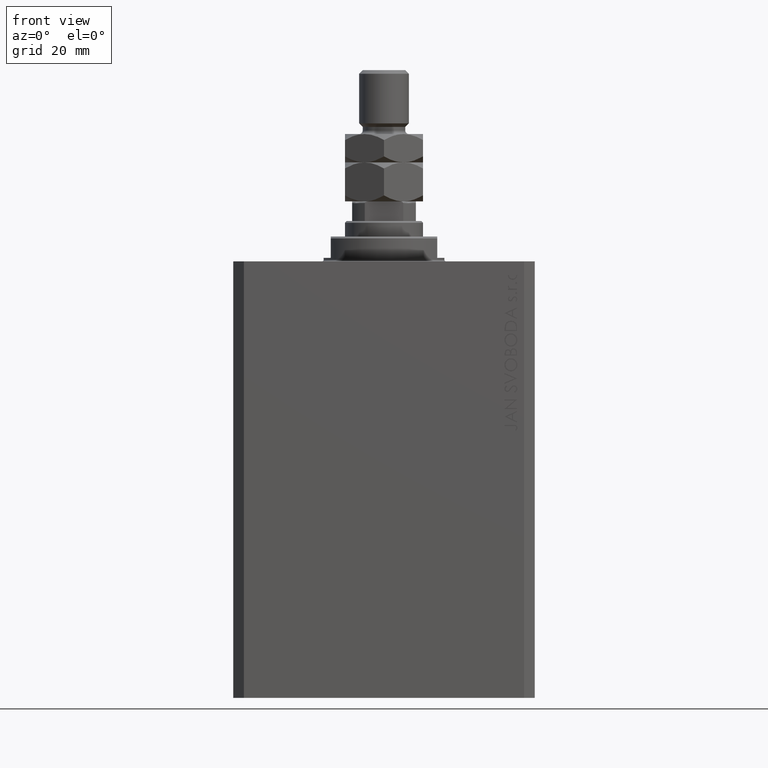
[diagram: clean part render]
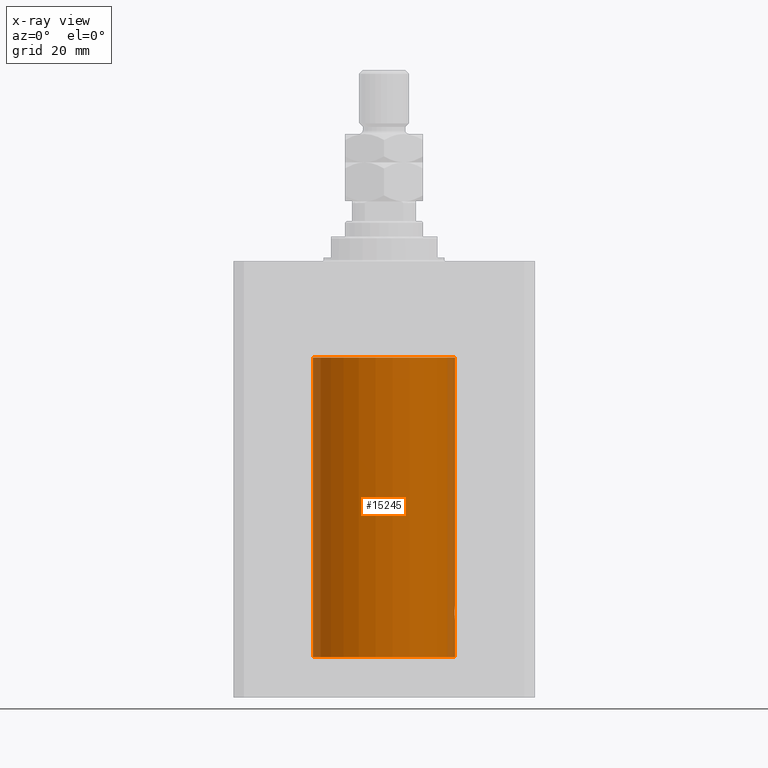
[diagram: x-ray — body ghosted, one internal face saturated and labeled with its STEP entity id]
A machine part, front view, then the same camera in x-ray: the body is ghosted and one INTERNAL B-rep face — a face not visible from any outside direction — is saturated and labeled: STEP entity #15245.
In plain terms, the highlighted cylindrical surface (partial cylindrical patch) has radius 20 mm, axis along (0, 0, 1).
Its self-contained STEP definition (entity closure, byte-faithful):
#187 = CARTESIAN_POINT ( 'NONE',  ( 20.00000000000000000, -1.553109350199128042E-23, -97.00000000000000000 ) ) ;
#661 = CARTESIAN_POINT ( 'NONE',  ( 19.99457156948952985, -0.5245703965536948621, -97.05250028761906833 ) ) ;
#1334 = CARTESIAN_POINT ( 'NONE',  ( 19.96304361591165133, -1.229269670911803614, -97.40095624928315488 ) ) ;
#1446 = CARTESIAN_POINT ( 'NONE',  ( 19.89974874213243083, -1.999999999999655165, -99.13207361806611573 ) ) ;
#1721 = EDGE_CURVE ( 'NONE', #26404, #26307, #30868, .T. ) ;
#1804 = CARTESIAN_POINT ( 'NONE',  ( 19.90106531167246828, -1.987021080928412342, -98.73779127013027335 ) ) ;
#1919 = CARTESIAN_POINT ( 'NONE',  ( 19.99450726301181192, -0.5268413099739941430, -100.9468459871092705 ) ) ;
#2029 = CARTESIAN_POINT ( 'NONE',  ( 19.89974874213243439, -1.999999999999655609, -98.86779873849403089 ) ) ;
#2471 = AXIS2_PLACEMENT_3D ( 'NONE', #28770, #35311, #24610 ) ;
#3175 = CARTESIAN_POINT ( 'NONE',  ( 0.000000000000000000, 0.000000000000000000, -27.10000000000000142 ) ) ;
#3316 = EDGE_CURVE ( 'NONE', #23787, #40962, #14059, .T. ) ;
#3641 = DIRECTION ( 'NONE',  ( -0.000000000000000000, -0.000000000000000000, 1.000000000000000000 ) ) ;
#5028 = EDGE_LOOP ( 'NONE', ( #27587, #15710, #28354, #29807, #9857, #9832, #25927 ) ) ;
#5408 = CARTESIAN_POINT ( 'NONE',  ( 19.96296989966237945, -1.230425635331405365, -100.5981187666770893 ) ) ;
#6848 = VERTEX_POINT ( 'NONE', #45804 ) ;
#7014 = CYLINDRICAL_SURFACE ( 'NONE', #32861, 20.00000000000000000 ) ;
#7065 = CARTESIAN_POINT ( 'NONE',  ( 19.92467362751852988, -1.735709893904968437, -97.99780393930582534 ) ) ;
#7400 = LINE ( 'NONE', #14810, #38475 ) ;
#7533 = VERTEX_POINT ( 'NONE', #13774 ) ;
#8653 = CARTESIAN_POINT ( 'NONE',  ( 19.90607187811043843, -1.936221525612430661, -99.51770555336665325 ) ) ;
#9272 = EDGE_CURVE ( 'NONE', #40962, #6848, #39487, .T. ) ;
#9568 = CARTESIAN_POINT ( 'NONE',  ( 19.89974874213243439, -1.999999999999655609, -99.00000000000000000 ) ) ;
#9689 = CARTESIAN_POINT ( 'NONE',  ( 20.00000000000000000, 0.000000000000000000, -111.6000000000000085 ) ) ;
#9832 = ORIENTED_EDGE ( 'NONE', *, *, #9272, .T. ) ;
#9857 = ORIENTED_EDGE ( 'NONE', *, *, #3316, .T. ) ;
#12364 = CARTESIAN_POINT ( 'NONE',  ( 19.94337316053471909, -1.506783194222099720, -100.3215850766146531 ) ) ;
#12762 = CARTESIAN_POINT ( 'NONE',  ( 20.00000000000000000, 0.000000000000000000, -27.10000000000000142 ) ) ;
#13512 = DIRECTION ( 'NONE',  ( 1.000000000000000000, 0.000000000000000000, 0.000000000000000000 ) ) ;
#13617 = DIRECTION ( 'NONE',  ( 1.000000000000000000, 0.000000000000000000, 0.000000000000000000 ) ) ;
#13774 = CARTESIAN_POINT ( 'NONE',  ( 20.00000000000000000, 0.000000000000000000, -111.6000000000000085 ) ) ;
#14059 = B_SPLINE_CURVE_WITH_KNOTS ( 'NONE', 3,
 ( #33156, #15739, #661, #25495, #1334, #29657, #14814, #7065, #44512, #33838, #45837, #1804, #2029, #30122 ),
 .UNSPECIFIED., .F., .F.,
 ( 4, 2, 2, 2, 2, 2, 4 ),
 ( 0.006256819553330524898, 0.007039116231737640138, 0.007821412910144754510, 0.008212561249348312997, 0.008603709588551871484, 0.008994857927755429972, 0.009386006266958986724 ),
 .UNSPECIFIED. ) ;
#14196 = FACE_OUTER_BOUND ( 'NONE', #5028, .T. ) ;
#14810 = CARTESIAN_POINT ( 'NONE',  ( 20.00000000000000000, 0.000000000000000000, -111.6000000000000085 ) ) ;
#14814 = CARTESIAN_POINT ( 'NONE',  ( 19.93679035661676835, -1.590502522866548585, -97.78041502771402804 ) ) ;
#15157 = DIRECTION ( 'NONE',  ( 0.000000000000000000, 0.000000000000000000, 1.000000000000000000 ) ) ;
#15245 = ADVANCED_FACE ( 'NONE', ( #14196 ), #7014, .F. ) ;
#15710 = ORIENTED_EDGE ( 'NONE', *, *, #41787, .T. ) ;
#15739 = CARTESIAN_POINT ( 'NONE',  ( 20.00000000000000000, -0.2612062508298597097, -97.00000000000005684 ) ) ;
#16078 = CARTESIAN_POINT ( 'NONE',  ( 19.89974874213243439, -1.999999999999655609, -99.00000000000000000 ) ) ;
#17171 = CARTESIAN_POINT ( 'NONE',  ( -20.00000000000000000, 2.449293598294706513E-15, -27.10000000000000142 ) ) ;
#18277 = AXIS2_PLACEMENT_3D ( 'NONE', #3175, #15157, #13617 ) ;
#19575 = CARTESIAN_POINT ( 'NONE',  ( 19.97604812261521090, -1.007662572237620457, -100.7471082404733096 ) ) ;
#20261 = CARTESIAN_POINT ( 'NONE',  ( 19.99999999999999645, -0.2642773949967771041, -100.9999999999999289 ) ) ;
#21504 = LINE ( 'NONE', #28240, #26118 ) ;
#23787 = VERTEX_POINT ( 'NONE', #187 ) ;
#24610 = DIRECTION ( 'NONE',  ( 1.000000000000000000, 0.000000000000000000, 0.000000000000000000 ) ) ;
#25098 = CARTESIAN_POINT ( 'NONE',  ( 0.000000000000000000, 0.000000000000000000, -111.6000000000000085 ) ) ;
#25495 = CARTESIAN_POINT ( 'NONE',  ( 19.97612863609106171, -1.006156579624605252, -97.25197878504231142 ) ) ;
#25927 = ORIENTED_EDGE ( 'NONE', *, *, #28049, .F. ) ;
#26118 = VECTOR ( 'NONE', #3641, 1000.000000000000000 ) ;
#26153 = VERTEX_POINT ( 'NONE', #42054 ) ;
#26297 = CARTESIAN_POINT ( 'NONE',  ( 19.90981966846453588, -1.897793276286218411, -99.64463361322839319 ) ) ;
#26307 = VERTEX_POINT ( 'NONE', #12762 ) ;
#26404 = VERTEX_POINT ( 'NONE', #17171 ) ;
#27587 = ORIENTED_EDGE ( 'NONE', *, *, #44204, .F. ) ;
#28049 = EDGE_CURVE ( 'NONE', #7533, #6848, #7400, .T. ) ;
#28115 = VECTOR ( 'NONE', #45673, 1000.000000000000000 ) ;
#28240 = CARTESIAN_POINT ( 'NONE',  ( -20.00000000000000000, 2.449293598294706513E-15, -111.6000000000000085 ) ) ;
#28354 = ORIENTED_EDGE ( 'NONE', *, *, #1721, .T. ) ;
#28770 = CARTESIAN_POINT ( 'NONE',  ( 0.000000000000000000, 0.000000000000000000, -111.6000000000000085 ) ) ;
#29185 = EDGE_CURVE ( 'NONE', #23787, #26307, #41509, .T. ) ;
#29657 = CARTESIAN_POINT ( 'NONE',  ( 19.94343050116685845, -1.506032346525473020, -97.67754857126976731 ) ) ;
#29807 = ORIENTED_EDGE ( 'NONE', *, *, #29185, .F. ) ;
#30010 = CARTESIAN_POINT ( 'NONE',  ( 19.92464121718639802, -1.736076547215872790, -100.0015422135783894 ) ) ;
#30122 = CARTESIAN_POINT ( 'NONE',  ( 19.89974874213243439, -1.999999999999655609, -99.00000000000000000 ) ) ;
#30868 = CIRCLE ( 'NONE', #18277, 20.00000000000000000 ) ;
#31848 = DIRECTION ( 'NONE',  ( -0.000000000000000000, -0.000000000000000000, 1.000000000000000000 ) ) ;
#32857 = CIRCLE ( 'NONE', #2471, 20.00000000000000000 ) ;
#32861 = AXIS2_PLACEMENT_3D ( 'NONE', #25098, #31848, #13512 ) ;
#33156 = CARTESIAN_POINT ( 'NONE',  ( 20.00000000000000000, -1.553109350199128042E-23, -97.00000000000000000 ) ) ;
#33838 = CARTESIAN_POINT ( 'NONE',  ( 19.90983652367462042, -1.897617924364799924, -98.35484020333801425 ) ) ;
#35311 = DIRECTION ( 'NONE',  ( 0.000000000000000000, 0.000000000000000000, 1.000000000000000000 ) ) ;
#36974 = CARTESIAN_POINT ( 'NONE',  ( 19.93674030556024590, -1.591123942389839119, -100.2187588700503227 ) ) ;
#38475 = VECTOR ( 'NONE', #43135, 1000.000000000000000 ) ;
#39487 = B_SPLINE_CURVE_WITH_KNOTS ( 'NONE', 3,
 ( #16078, #1446, #44400, #8653, #26297, #40462, #30010, #36974, #12364, #5408, #19575, #1919, #20261, #41154 ),
 .UNSPECIFIED., .F., .F.,
 ( 4, 2, 2, 2, 2, 2, 4 ),
 ( 0.009386006266958986724, 0.009776776943204319378, 0.01016754761944965377, 0.01055831829569498642, 0.01094908897194031908, 0.01173063032443095663, 0.01251217167692159418 ),
 .UNSPECIFIED. ) ;
#40462 = CARTESIAN_POINT ( 'NONE',  ( 19.91912874598169125, -1.797456133345314511, -99.88674870370387282 ) ) ;
#40962 = VERTEX_POINT ( 'NONE', #9568 ) ;
#41154 = CARTESIAN_POINT ( 'NONE',  ( 20.00000000000000000, 0.000000000000000000, -101.0000000000000000 ) ) ;
#41509 = LINE ( 'NONE', #9689, #28115 ) ;
#41787 = EDGE_CURVE ( 'NONE', #26153, #26404, #21504, .T. ) ;
#42054 = CARTESIAN_POINT ( 'NONE',  ( -20.00000000000000000, 2.449293598294706513E-15, -111.6000000000000085 ) ) ;
#43135 = DIRECTION ( 'NONE',  ( -0.000000000000000000, -0.000000000000000000, 1.000000000000000000 ) ) ;
#44204 = EDGE_CURVE ( 'NONE', #26153, #7533, #32857, .T. ) ;
#44400 = CARTESIAN_POINT ( 'NONE',  ( 19.90106527362734568, -1.987020983172499422, -99.26214585379852906 ) ) ;
#44512 = CARTESIAN_POINT ( 'NONE',  ( 19.91915476385079842, -1.797169352086260830, -98.11266282055724730 ) ) ;
#45673 = DIRECTION ( 'NONE',  ( -0.000000000000000000, -0.000000000000000000, 1.000000000000000000 ) ) ;
#45804 = CARTESIAN_POINT ( 'NONE',  ( 20.00000000000000000, 0.000000000000000000, -101.0000000000000000 ) ) ;
#45837 = CARTESIAN_POINT ( 'NONE',  ( 19.90607912840593485, -1.936147476084615127, -98.48198538155280346 ) ) ;